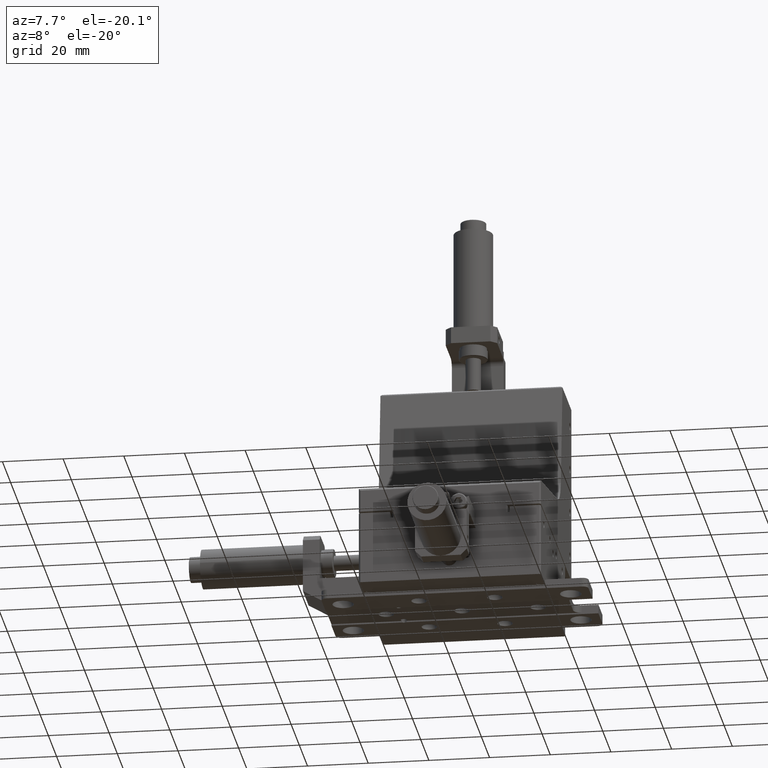
[diagram: clean part render]
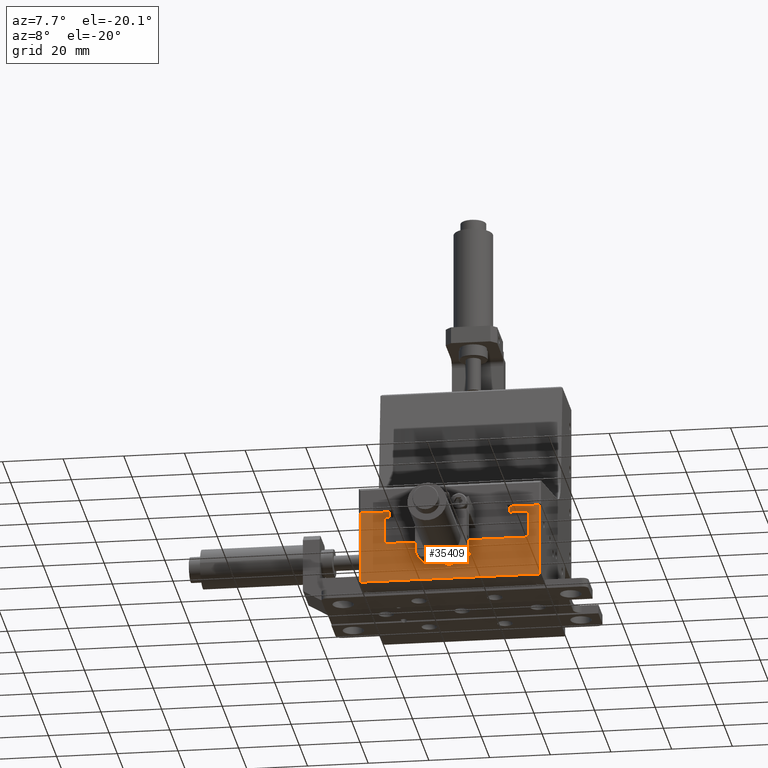
[diagram: same view with one face highlighted and labeled with its STEP entity id]
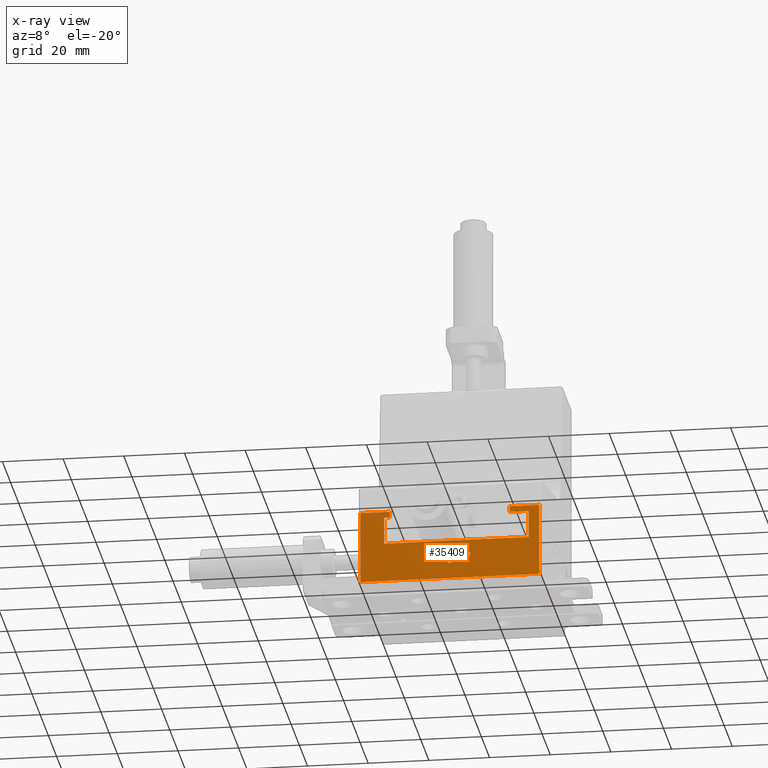
[diagram: x-ray of the same camera — body ghosted, the highlighted face saturated]
A machine part, auxiliary view. The second image highlights one B-rep face of the part: STEP entity #35409.
The next image is the same camera in x-ray: the body ghosted, the highlighted face saturated — about 3% of this face is hidden behind the body in this view.
In plain terms, the highlighted planar face has unit normal (0, 1, 0).
Its self-contained STEP definition (entity closure, byte-faithful):
#536 = CARTESIAN_POINT ( 'NONE',  ( 8.047695604249998500, -98.38251310799999800, 21.87128608500000100 ) ) ;
#545 = VECTOR ( 'NONE', #30604, 1000.000000000000000 ) ;
#653 = EDGE_CURVE ( 'NONE', #21737, #6300, #15068, .T. ) ;
#973 = EDGE_CURVE ( 'NONE', #23260, #16891, #14591, .T. ) ;
#1172 = CARTESIAN_POINT ( 'NONE',  ( -6.202304400000000100, -98.38251310799999800, 4.621286085000003000 ) ) ;
#1355 = ORIENTED_EDGE ( 'NONE', *, *, #17463, .F. ) ;
#1603 = PLANE ( 'NONE',  #5619 ) ;
#1720 = DIRECTION ( 'NONE',  ( 0.0000000000000000000, 0.0000000000000000000, -1.000000000000000000 ) ) ;
#2073 = FACE_OUTER_BOUND ( 'NONE', #16877, .T. ) ;
#2298 = ORIENTED_EDGE ( 'NONE', *, *, #653, .F. ) ;
#2596 = VERTEX_POINT ( 'NONE', #15519 ) ;
#2866 = CARTESIAN_POINT ( 'NONE',  ( 8.047695604249998500, -98.38251310799999800, 19.87128608699999800 ) ) ;
#3246 = ORIENTED_EDGE ( 'NONE', *, *, #28759, .F. ) ;
#3404 = EDGE_CURVE ( 'NONE', #28975, #3923, #18923, .T. ) ;
#3527 = CIRCLE ( 'NONE', #10116, 1.249999999999998400 ) ;
#3923 = VERTEX_POINT ( 'NONE', #18649 ) ;
#4049 = EDGE_CURVE ( 'NONE', #8219, #21737, #15335, .T. ) ;
#4140 = DIRECTION ( 'NONE',  ( 0.0000000000000000000, 0.0000000000000000000, -1.000000000000000000 ) ) ;
#4349 = LINE ( 'NONE', #6065, #19121 ) ;
#4385 = ORIENTED_EDGE ( 'NONE', *, *, #21411, .F. ) ;
#4780 = LINE ( 'NONE', #16646, #33390 ) ;
#5559 = CARTESIAN_POINT ( 'NONE',  ( -17.20230439999999900, -98.38251310799999800, 7.121286085000000400 ) ) ;
#5613 = CARTESIAN_POINT ( 'NONE',  ( -11.70230440000000100, -98.38251310799999800, 10.87128609300000000 ) ) ;
#5619 = AXIS2_PLACEMENT_3D ( 'NONE', #34931, #18411, #1720 ) ;
#5640 = DIRECTION ( 'NONE',  ( 0.0000000000000000000, -1.000000000000000000, -0.0000000000000000000 ) ) ;
#6065 = CARTESIAN_POINT ( 'NONE',  ( -11.70230440000000100, -98.38251310799999800, 21.87128608500000100 ) ) ;
#6212 = ORIENTED_EDGE ( 'NONE', *, *, #973, .F. ) ;
#6233 = CARTESIAN_POINT ( 'NONE',  ( 17.79769559899999700, -98.38251310799999800, 21.87128608500000500 ) ) ;
#6300 = VERTEX_POINT ( 'NONE', #21624 ) ;
#6575 = AXIS2_PLACEMENT_3D ( 'NONE', #15116, #34447, #17915 ) ;
#7066 = VECTOR ( 'NONE', #16918, 1000.000000000000000 ) ;
#7235 = CARTESIAN_POINT ( 'NONE',  ( -41.20230440000000300, -98.38251310799999800, 21.87128608500000500 ) ) ;
#7389 = LINE ( 'NONE', #34433, #22116 ) ;
#7733 = VERTEX_POINT ( 'NONE', #1172 ) ;
#7883 = VECTOR ( 'NONE', #17042, 1000.000000000000000 ) ;
#7975 = EDGE_CURVE ( 'NONE', #7733, #30716, #31472, .T. ) ;
#8219 = VERTEX_POINT ( 'NONE', #26391 ) ;
#10116 = AXIS2_PLACEMENT_3D ( 'NONE', #11246, #30600, #14033 ) ;
#10876 = CARTESIAN_POINT ( 'NONE',  ( 14.29769559999999900, -98.38251310799999800, 10.87128608500000100 ) ) ;
#11246 = CARTESIAN_POINT ( 'NONE',  ( -6.202304400000000100, -98.38251310799999800, 5.871286085000001300 ) ) ;
#11251 = DIRECTION ( 'NONE',  ( -1.000000000000000000, 0.0000000000000000000, 0.0000000000000000000 ) ) ;
#11476 = CARTESIAN_POINT ( 'NONE',  ( -17.20230439999999900, -98.38251310799999800, 4.621286085000003000 ) ) ;
#11933 = CARTESIAN_POINT ( 'NONE',  ( -6.202304400000000100, -98.38251310799999800, 7.121286085000000400 ) ) ;
#11993 = DIRECTION ( 'NONE',  ( -0.0000000000000000000, -0.0000000000000000000, 1.000000000000000000 ) ) ;
#12560 = CIRCLE ( 'NONE', #33801, 1.249999999999998400 ) ;
#12958 = CARTESIAN_POINT ( 'NONE',  ( 17.79769560999999800, -98.38251310799999800, -2.128713915000000100 ) ) ;
#13224 = LINE ( 'NONE', #20643, #34405 ) ;
#13675 = CIRCLE ( 'NONE', #6575, 1.249999999999999300 ) ;
#14033 = DIRECTION ( 'NONE',  ( 0.0000000000000000000, 0.0000000000000000000, -1.000000000000000000 ) ) ;
#14170 = CARTESIAN_POINT ( 'NONE',  ( -11.70230440000000100, -98.38251310799999800, 21.87128608500000100 ) ) ;
#14179 = CARTESIAN_POINT ( 'NONE',  ( -11.70230440000000100, -98.38251310799999800, -2.128713915000000100 ) ) ;
#14195 = EDGE_CURVE ( 'NONE', #24738, #2596, #13675, .T. ) ;
#14206 = VECTOR ( 'NONE', #15352, 1000.000000000000000 ) ;
#14218 = CARTESIAN_POINT ( 'NONE',  ( -11.70230439999999900, -98.38251310799999800, 5.621286085000000400 ) ) ;
#14591 = LINE ( 'NONE', #14170, #35772 ) ;
#14775 = CARTESIAN_POINT ( 'NONE',  ( -17.20230439999999900, -98.38251310799999800, 5.871286085000001300 ) ) ;
#14939 = DIRECTION ( 'NONE',  ( -0.0000000000000000000, -1.000000000000000000, -0.0000000000000000000 ) ) ;
#15068 = LINE ( 'NONE', #32059, #14206 ) ;
#15116 = CARTESIAN_POINT ( 'NONE',  ( -11.70230439999999900, -98.38251310799999800, 4.371286085000001300 ) ) ;
#15335 = LINE ( 'NONE', #5613, #545 ) ;
#15352 = DIRECTION ( 'NONE',  ( -0.0000000000000000000, -0.0000000000000000000, 1.000000000000000000 ) ) ;
#15519 = CARTESIAN_POINT ( 'NONE',  ( -11.70230439999999900, -98.38251310799999800, 3.121286085000001700 ) ) ;
#16224 = CARTESIAN_POINT ( 'NONE',  ( -6.202304400000000100, -98.38251310799999800, 5.871286085000001300 ) ) ;
#16646 = CARTESIAN_POINT ( 'NONE',  ( -11.70230440000000100, -98.38251310799999800, 19.87128609299999800 ) ) ;
#16832 = FACE_BOUND ( 'NONE', #29867, .T. ) ;
#16877 = EDGE_LOOP ( 'NONE', ( #34099, #31187, #28195, #1355, #6212, #28950, #18853, #3246, #34686, #34259, #35979, #2298 ) ) ;
#16891 = VERTEX_POINT ( 'NONE', #26252 ) ;
#16918 = DIRECTION ( 'NONE',  ( -1.000000000000000000, 0.0000000000000000000, 0.0000000000000000000 ) ) ;
#16973 = VERTEX_POINT ( 'NONE', #12958 ) ;
#17042 = DIRECTION ( 'NONE',  ( -0.0000000000000000000, -0.0000000000000000000, 1.000000000000000000 ) ) ;
#17155 = EDGE_CURVE ( 'NONE', #6300, #33162, #4780, .T. ) ;
#17359 = VERTEX_POINT ( 'NONE', #6233 ) ;
#17463 = EDGE_CURVE ( 'NONE', #16891, #28975, #7389, .T. ) ;
#17532 = CARTESIAN_POINT ( 'NONE',  ( 8.047695616999996900, -98.38251310799999800, 9.871286084999999500 ) ) ;
#17551 = DIRECTION ( 'NONE',  ( 0.0000000000000000000, 0.0000000000000000000, -1.000000000000000000 ) ) ;
#17810 = EDGE_CURVE ( 'NONE', #35137, #17359, #4349, .T. ) ;
#17844 = EDGE_CURVE ( 'NONE', #3923, #8219, #18269, .T. ) ;
#17889 = DIRECTION ( 'NONE',  ( 0.0000000000000000000, 0.0000000000000000000, -1.000000000000000000 ) ) ;
#17915 = DIRECTION ( 'NONE',  ( 0.0000000000000000000, 0.0000000000000000000, -1.000000000000000000 ) ) ;
#18269 = LINE ( 'NONE', #28247, #26446 ) ;
#18411 = DIRECTION ( 'NONE',  ( 0.0000000000000000000, 1.000000000000000000, 0.0000000000000000000 ) ) ;
#18487 = ORIENTED_EDGE ( 'NONE', *, *, #19544, .F. ) ;
#18649 = CARTESIAN_POINT ( 'NONE',  ( -33.30230440249999900, -98.38251310799999800, 19.87128608600000100 ) ) ;
#18699 = ORIENTED_EDGE ( 'NONE', *, *, #20376, .F. ) ;
#18853 = ORIENTED_EDGE ( 'NONE', *, *, #20025, .F. ) ;
#18923 = LINE ( 'NONE', #33750, #32784 ) ;
#19028 = DIRECTION ( 'NONE',  ( 0.0000000000000000000, 0.0000000000000000000, -1.000000000000000000 ) ) ;
#19121 = VECTOR ( 'NONE', #25456, 1000.000000000000000 ) ;
#19398 = VERTEX_POINT ( 'NONE', #5559 ) ;
#19544 = EDGE_CURVE ( 'NONE', #2596, #24738, #24869, .T. ) ;
#19904 = DIRECTION ( 'NONE',  ( 0.0000000000000000000, 0.0000000000000000000, -1.000000000000000000 ) ) ;
#20025 = EDGE_CURVE ( 'NONE', #16973, #23577, #21802, .T. ) ;
#20253 = CARTESIAN_POINT ( 'NONE',  ( -31.45230440212500200, -98.38251310799999800, 19.87128608900000200 ) ) ;
#20376 = EDGE_CURVE ( 'NONE', #30716, #7733, #3527, .T. ) ;
#20643 = CARTESIAN_POINT ( 'NONE',  ( 17.79769560000000100, -98.38251310799999800, 9.871286084999999500 ) ) ;
#20804 = VECTOR ( 'NONE', #11993, 1000.000000000000000 ) ;
#20819 = AXIS2_PLACEMENT_3D ( 'NONE', #16224, #35584, #19028 ) ;
#21411 = EDGE_CURVE ( 'NONE', #25860, #19398, #12560, .T. ) ;
#21624 = CARTESIAN_POINT ( 'NONE',  ( 14.29769559849999900, -98.38251310799999800, 19.87128608699999800 ) ) ;
#21737 = VERTEX_POINT ( 'NONE', #10876 ) ;
#21802 = LINE ( 'NONE', #14179, #7066 ) ;
#22078 = EDGE_LOOP ( 'NONE', ( #4385, #27323 ) ) ;
#22116 = VECTOR ( 'NONE', #17889, 1000.000000000000000 ) ;
#22285 = CARTESIAN_POINT ( 'NONE',  ( -17.20230439999999900, -98.38251310799999800, 5.871286085000001300 ) ) ;
#22778 = AXIS2_PLACEMENT_3D ( 'NONE', #31501, #14939, #34258 ) ;
#23173 = CARTESIAN_POINT ( 'NONE',  ( -41.20230441000000400, -98.38251310799999800, -2.128713915000000500 ) ) ;
#23260 = VERTEX_POINT ( 'NONE', #7235 ) ;
#23577 = VERTEX_POINT ( 'NONE', #23173 ) ;
#23814 = EDGE_LOOP ( 'NONE', ( #35304, #18699 ) ) ;
#24225 = FACE_BOUND ( 'NONE', #23814, .T. ) ;
#24738 = VERTEX_POINT ( 'NONE', #14218 ) ;
#24869 = CIRCLE ( 'NONE', #22778, 1.249999999999999300 ) ;
#25041 = DIRECTION ( 'NONE',  ( 0.0000000000000000000, 0.0000000000000000000, -1.000000000000000000 ) ) ;
#25397 = DIRECTION ( 'NONE',  ( -1.000000000000000000, 0.0000000000000000000, 0.0000000000000000000 ) ) ;
#25456 = DIRECTION ( 'NONE',  ( 1.000000000000000000, -0.0000000000000000000, -0.0000000000000000000 ) ) ;
#25860 = VERTEX_POINT ( 'NONE', #11476 ) ;
#26252 = CARTESIAN_POINT ( 'NONE',  ( -31.45230440849999800, -98.38251310799999800, 21.87128608500000100 ) ) ;
#26391 = CARTESIAN_POINT ( 'NONE',  ( -33.30230440062499800, -98.38251310799999800, 10.87128608900000200 ) ) ;
#26446 = VECTOR ( 'NONE', #19904, 1000.000000000000000 ) ;
#26753 = CIRCLE ( 'NONE', #34218, 1.249999999999998400 ) ;
#27256 = LINE ( 'NONE', #17532, #20804 ) ;
#27323 = ORIENTED_EDGE ( 'NONE', *, *, #31199, .F. ) ;
#27851 = EDGE_CURVE ( 'NONE', #23577, #23260, #29109, .T. ) ;
#28195 = ORIENTED_EDGE ( 'NONE', *, *, #3404, .F. ) ;
#28247 = CARTESIAN_POINT ( 'NONE',  ( -33.30230440500000100, -98.38251310799999800, 9.871286084999999500 ) ) ;
#28759 = EDGE_CURVE ( 'NONE', #17359, #16973, #13224, .T. ) ;
#28950 = ORIENTED_EDGE ( 'NONE', *, *, #27851, .F. ) ;
#28964 = ORIENTED_EDGE ( 'NONE', *, *, #14195, .F. ) ;
#28975 = VERTEX_POINT ( 'NONE', #20253 ) ;
#29109 = LINE ( 'NONE', #33631, #7883 ) ;
#29867 = EDGE_LOOP ( 'NONE', ( #18487, #28964 ) ) ;
#30600 = DIRECTION ( 'NONE',  ( 0.0000000000000000000, -1.000000000000000000, -0.0000000000000000000 ) ) ;
#30604 = DIRECTION ( 'NONE',  ( 1.000000000000000000, -0.0000000000000000000, -0.0000000000000000000 ) ) ;
#30716 = VERTEX_POINT ( 'NONE', #11933 ) ;
#30732 = FACE_BOUND ( 'NONE', #22078, .T. ) ;
#31187 = ORIENTED_EDGE ( 'NONE', *, *, #17844, .F. ) ;
#31199 = EDGE_CURVE ( 'NONE', #19398, #25860, #26753, .T. ) ;
#31472 = CIRCLE ( 'NONE', #20819, 1.249999999999998400 ) ;
#31501 = CARTESIAN_POINT ( 'NONE',  ( -11.70230439999999900, -98.38251310799999800, 4.371286085000001300 ) ) ;
#32059 = CARTESIAN_POINT ( 'NONE',  ( 14.29769559399999900, -98.38251310799999800, 9.871286084999999500 ) ) ;
#32784 = VECTOR ( 'NONE', #25397, 1000.000000000000000 ) ;
#33161 = DIRECTION ( 'NONE',  ( 1.000000000000000000, -0.0000000000000000000, -0.0000000000000000000 ) ) ;
#33162 = VERTEX_POINT ( 'NONE', #2866 ) ;
#33390 = VECTOR ( 'NONE', #11251, 1000.000000000000000 ) ;
#33631 = CARTESIAN_POINT ( 'NONE',  ( -41.20230440000000300, -98.38251310799999800, 9.871286084999999500 ) ) ;
#33750 = CARTESIAN_POINT ( 'NONE',  ( -11.70230440000000100, -98.38251310799999800, 19.87128609299999800 ) ) ;
#33801 = AXIS2_PLACEMENT_3D ( 'NONE', #22285, #5640, #25041 ) ;
#34099 = ORIENTED_EDGE ( 'NONE', *, *, #4049, .F. ) ;
#34118 = DIRECTION ( 'NONE',  ( 0.0000000000000000000, -1.000000000000000000, -0.0000000000000000000 ) ) ;
#34218 = AXIS2_PLACEMENT_3D ( 'NONE', #14775, #34118, #17551 ) ;
#34258 = DIRECTION ( 'NONE',  ( 0.0000000000000000000, 0.0000000000000000000, -1.000000000000000000 ) ) ;
#34259 = ORIENTED_EDGE ( 'NONE', *, *, #35262, .F. ) ;
#34405 = VECTOR ( 'NONE', #4140, 1000.000000000000000 ) ;
#34433 = CARTESIAN_POINT ( 'NONE',  ( -31.45230441700000400, -98.38251310799999800, 9.871286084999999500 ) ) ;
#34447 = DIRECTION ( 'NONE',  ( -0.0000000000000000000, -1.000000000000000000, -0.0000000000000000000 ) ) ;
#34686 = ORIENTED_EDGE ( 'NONE', *, *, #17810, .F. ) ;
#34931 = CARTESIAN_POINT ( 'NONE',  ( 17.79769560000000100, -98.38251310799999800, 21.87128608500000100 ) ) ;
#35137 = VERTEX_POINT ( 'NONE', #536 ) ;
#35262 = EDGE_CURVE ( 'NONE', #33162, #35137, #27256, .T. ) ;
#35304 = ORIENTED_EDGE ( 'NONE', *, *, #7975, .F. ) ;
#35409 = ADVANCED_FACE ( 'NONE', ( #24225, #30732, #16832, #2073 ), #1603, .F. ) ;
#35584 = DIRECTION ( 'NONE',  ( 0.0000000000000000000, -1.000000000000000000, -0.0000000000000000000 ) ) ;
#35772 = VECTOR ( 'NONE', #33161, 1000.000000000000000 ) ;
#35979 = ORIENTED_EDGE ( 'NONE', *, *, #17155, .F. ) ;